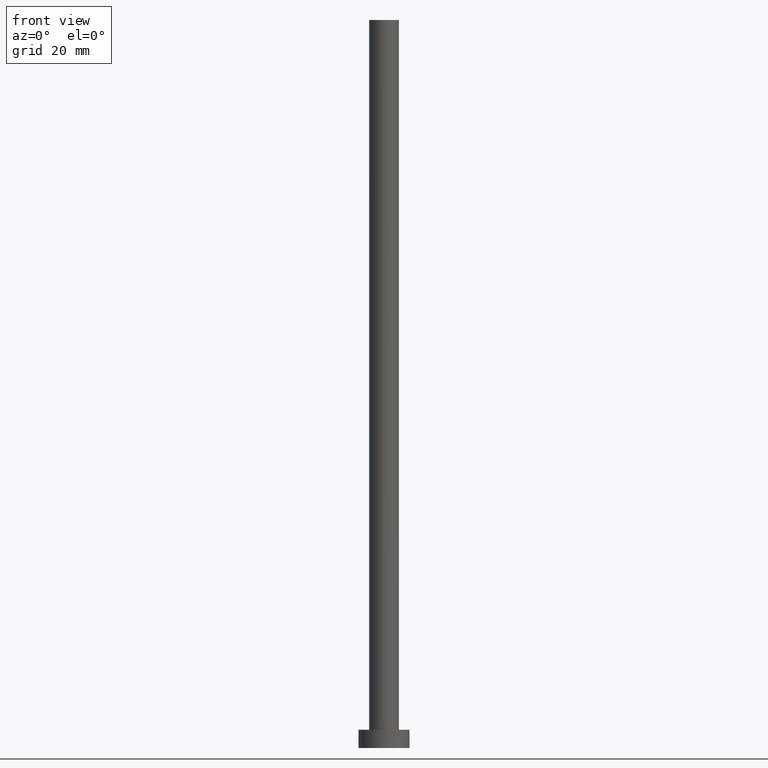
[diagram: clean part render]
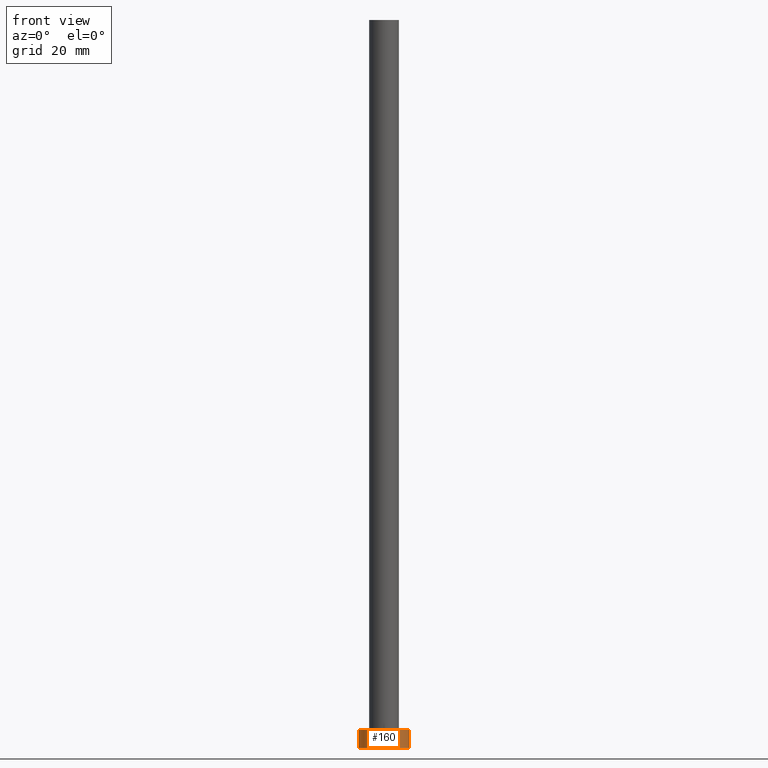
[diagram: same view with one face highlighted and labeled with its STEP entity id]
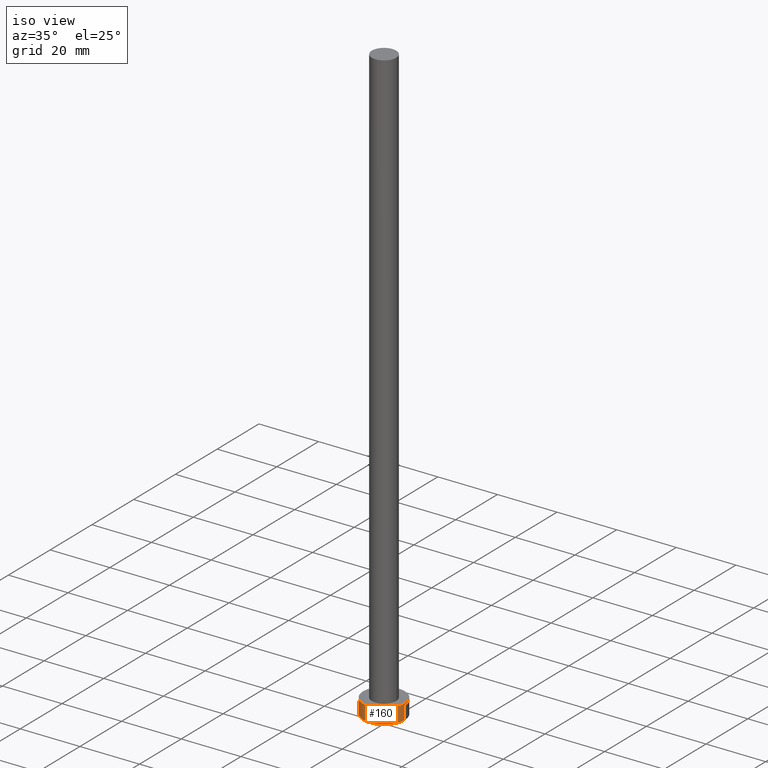
[diagram: same view with one face highlighted and labeled with its STEP entity id]
A machine part, front view. The second image highlights one B-rep face of the part: STEP entity #160.
A second angle (iso view) of the same face is appended — the face is thin or edge-on in the first view.
In plain terms, the highlighted cylindrical surface (edge-blend (fillet) strip) has radius 7 mm, axis along (-0, -0, -1).
Its self-contained STEP definition (entity closure, byte-faithful):
#1 = EDGE_CURVE ( 'NONE', #135, #173, #228, .T. ) ;
#13 = CARTESIAN_POINT ( 'NONE',  ( -7.000000000000000000, 0.000000000000000000, 0.000000000000000000 ) ) ;
#22 = EDGE_CURVE ( 'NONE', #28, #89, #60, .T. ) ;
#28 = VERTEX_POINT ( 'NONE', #250 ) ;
#38 = CYLINDRICAL_SURFACE ( 'NONE', #185, 7.000000000000000000 ) ;
#39 = DIRECTION ( 'NONE',  ( -0.000000000000000000, -0.000000000000000000, -1.000000000000000000 ) ) ;
#42 = ORIENTED_EDGE ( 'NONE', *, *, #82, .T. ) ;
#48 = ORIENTED_EDGE ( 'NONE', *, *, #22, .T. ) ;
#60 = LINE ( 'NONE', #161, #132 ) ;
#63 = ORIENTED_EDGE ( 'NONE', *, *, #1, .F. ) ;
#79 = AXIS2_PLACEMENT_3D ( 'NONE', #118, #186, #189 ) ;
#82 = EDGE_CURVE ( 'NONE', #89, #173, #163, .T. ) ;
#86 = CARTESIAN_POINT ( 'NONE',  ( 7.000000000000000000, 8.572527594031473190E-16, 5.000000000000000000 ) ) ;
#89 = VERTEX_POINT ( 'NONE', #13 ) ;
#101 = ORIENTED_EDGE ( 'NONE', *, *, #129, .F. ) ;
#102 = CARTESIAN_POINT ( 'NONE',  ( 0.000000000000000000, 0.000000000000000000, 5.000000000000000000 ) ) ;
#105 = DIRECTION ( 'NONE',  ( 0.000000000000000000, 0.000000000000000000, 1.000000000000000000 ) ) ;
#108 = CIRCLE ( 'NONE', #235, 7.000000000000000000 ) ;
#111 = CARTESIAN_POINT ( 'NONE',  ( 7.000000000000000000, 8.572527594031473190E-16, 5.000000000000000000 ) ) ;
#113 = EDGE_LOOP ( 'NONE', ( #63, #101, #48, #42 ) ) ;
#115 = DIRECTION ( 'NONE',  ( -0.000000000000000000, -0.000000000000000000, -1.000000000000000000 ) ) ;
#118 = CARTESIAN_POINT ( 'NONE',  ( 0.000000000000000000, 0.000000000000000000, 0.000000000000000000 ) ) ;
#122 = VECTOR ( 'NONE', #39, 1000.000000000000000 ) ;
#123 = DIRECTION ( 'NONE',  ( -0.000000000000000000, -0.000000000000000000, -1.000000000000000000 ) ) ;
#129 = EDGE_CURVE ( 'NONE', #28, #135, #108, .T. ) ;
#132 = VECTOR ( 'NONE', #123, 1000.000000000000000 ) ;
#135 = VERTEX_POINT ( 'NONE', #111 ) ;
#160 = ADVANCED_FACE ( 'NONE', ( #242 ), #38, .T. ) ;
#161 = CARTESIAN_POINT ( 'NONE',  ( -7.000000000000000000, 0.000000000000000000, 5.000000000000000000 ) ) ;
#163 = CIRCLE ( 'NONE', #79, 7.000000000000000000 ) ;
#173 = VERTEX_POINT ( 'NONE', #200 ) ;
#183 = DIRECTION ( 'NONE',  ( -1.000000000000000000, 0.000000000000000000, 0.000000000000000000 ) ) ;
#184 = DIRECTION ( 'NONE',  ( 1.000000000000000000, 0.000000000000000000, 0.000000000000000000 ) ) ;
#185 = AXIS2_PLACEMENT_3D ( 'NONE', #188, #115, #183 ) ;
#186 = DIRECTION ( 'NONE',  ( 0.000000000000000000, 0.000000000000000000, 1.000000000000000000 ) ) ;
#188 = CARTESIAN_POINT ( 'NONE',  ( 0.000000000000000000, 0.000000000000000000, 5.000000000000000000 ) ) ;
#189 = DIRECTION ( 'NONE',  ( 1.000000000000000000, 0.000000000000000000, 0.000000000000000000 ) ) ;
#200 = CARTESIAN_POINT ( 'NONE',  ( 7.000000000000000000, 8.572527594031473190E-16, 0.000000000000000000 ) ) ;
#228 = LINE ( 'NONE', #86, #122 ) ;
#235 = AXIS2_PLACEMENT_3D ( 'NONE', #102, #105, #184 ) ;
#242 = FACE_OUTER_BOUND ( 'NONE', #113, .T. ) ;
#250 = CARTESIAN_POINT ( 'NONE',  ( -7.000000000000000000, 0.000000000000000000, 5.000000000000000000 ) ) ;